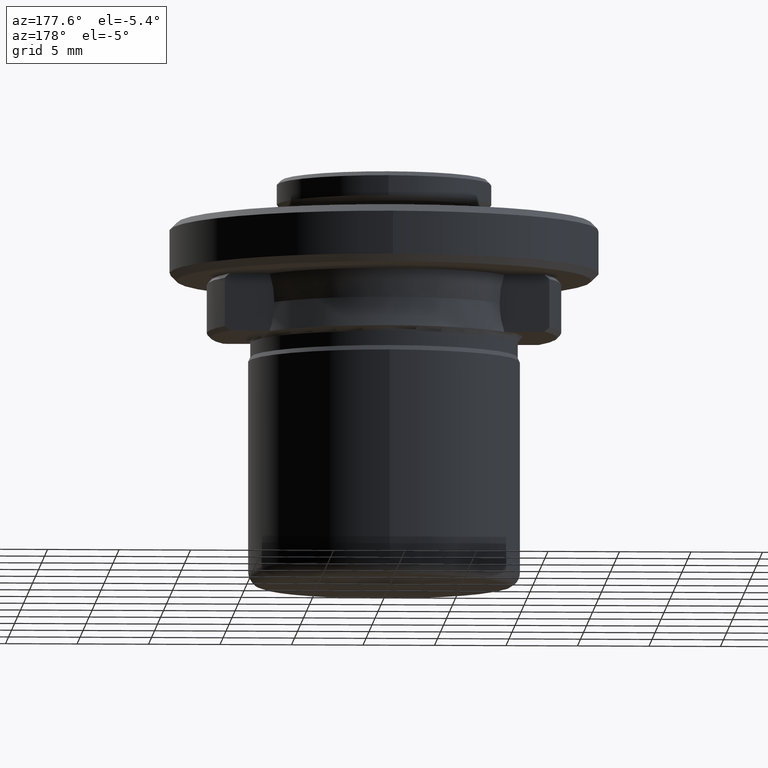
[diagram: clean part render]
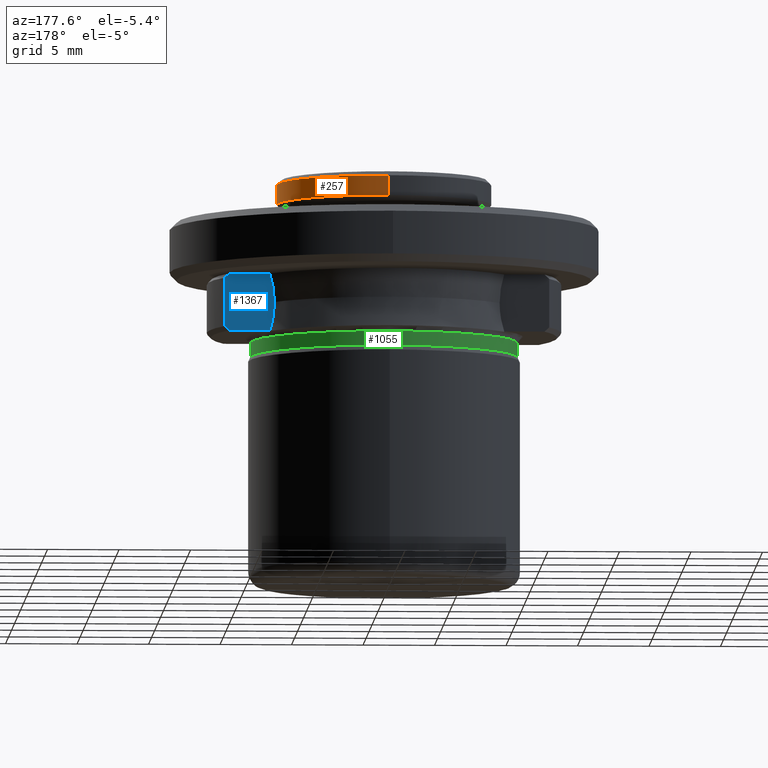
[diagram: same view with three faces highlighted in distinct colors, each labeled with its STEP entity id]
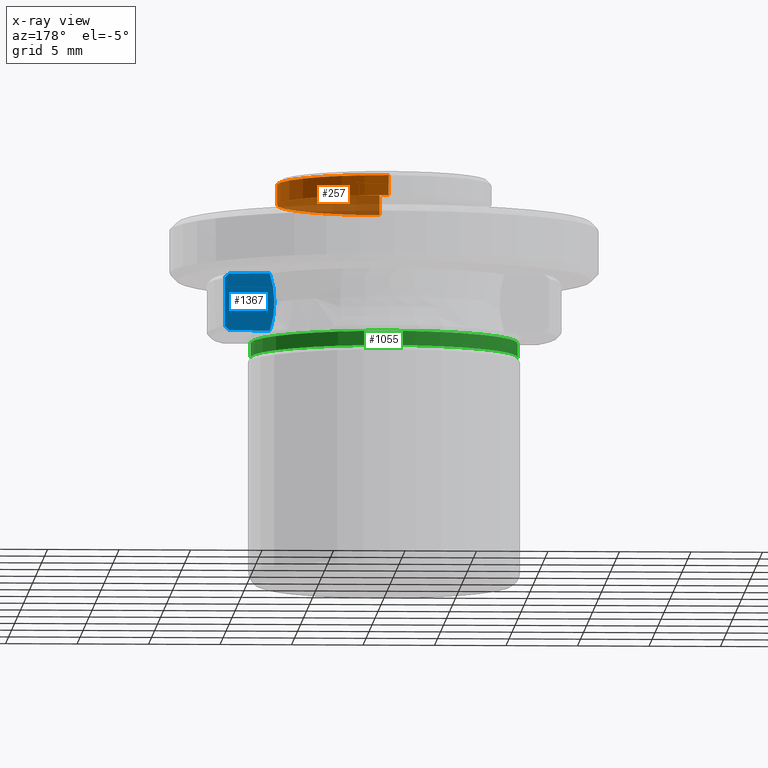
[diagram: x-ray of the same camera — body ghosted, the three highlighted faces saturated]
A machine part, auxiliary view with three faces highlighted in distinct colors.
The next image is the same camera in x-ray (body ghosted, the three faces saturated) — at least one of them is partly hidden behind the body in this view.
Their STEP definitions:

[orange] entity #257 — the highlighted cylindrical surface (partial cylindrical patch) has radius 7.5 mm, axis along (0, -0, -1).
#5 = DIRECTION ( 'NONE',  ( -1.000000000000000000, 0.0000000000000000000, 0.0000000000000000000 ) ) ;
#44 = CARTESIAN_POINT ( 'NONE',  ( 0.0000000000000000000, 7.500000000000000000, 14.05000000000000800 ) ) ;
#76 = DIRECTION ( 'NONE',  ( 0.0000000000000000000, 1.000000000000000000, -2.312964634635743000E-016 ) ) ;
#117 = CARTESIAN_POINT ( 'NONE',  ( 9.184850993605147900E-016, -7.500000000000000000, 14.05000000000000800 ) ) ;
#144 = DIRECTION ( 'NONE',  ( 0.0000000000000000000, 0.0000000000000000000, 1.000000000000000000 ) ) ;
#147 = VERTEX_POINT ( 'NONE', #44 ) ;
#199 = EDGE_LOOP ( 'NONE', ( #1612, #1789, #1942, #669, #343, #1507 ) ) ;
#208 = EDGE_CURVE ( 'NONE', #1764, #147, #620, .T. ) ;
#231 = VECTOR ( 'NONE', #772, 1000.000000000000000 ) ;
#257 = ADVANCED_FACE ( 'NONE', ( #1793 ), #506, .T. ) ;
#287 = CARTESIAN_POINT ( 'NONE',  ( 9.184850993605147900E-016, -7.500000000000000000, 15.45000000000000100 ) ) ;
#343 = ORIENTED_EDGE ( 'NONE', *, *, #208, .F. ) ;
#401 = AXIS2_PLACEMENT_3D ( 'NONE', #1945, #972, #5 ) ;
#485 = DIRECTION ( 'NONE',  ( 0.0000000000000000000, 0.0000000000000000000, 1.000000000000000000 ) ) ;
#506 = CYLINDRICAL_SURFACE ( 'NONE', #1294, 7.500000000000000000 ) ;
#518 = CIRCLE ( 'NONE', #401, 7.500000000000000000 ) ;
#568 = CARTESIAN_POINT ( 'NONE',  ( 0.0000000000000000000, 0.0000000000000000000, 15.45000000000000100 ) ) ;
#619 = CARTESIAN_POINT ( 'NONE',  ( 9.184850993605147900E-016, -7.500000000000000000, 15.45000000000000300 ) ) ;
#620 = LINE ( 'NONE', #1499, #1843 ) ;
#634 = CIRCLE ( 'NONE', #1586, 7.500000000000000000 ) ;
#669 = ORIENTED_EDGE ( 'NONE', *, *, #1486, .T. ) ;
#721 = DIRECTION ( 'NONE',  ( -0.0000000000000000000, -0.0000000000000000000, 1.000000000000000000 ) ) ;
#772 = DIRECTION ( 'NONE',  ( 0.0000000000000000000, -1.156482317317871700E-016, -1.000000000000000000 ) ) ;
#874 = EDGE_CURVE ( 'NONE', #1920, #885, #1593, .T. ) ;
#885 = VERTEX_POINT ( 'NONE', #117 ) ;
#972 = DIRECTION ( 'NONE',  ( -0.0000000000000000000, -0.0000000000000000000, 1.000000000000000000 ) ) ;
#983 = VERTEX_POINT ( 'NONE', #1645 ) ;
#1023 = AXIS2_PLACEMENT_3D ( 'NONE', #1686, #721, #1846 ) ;
#1120 = CARTESIAN_POINT ( 'NONE',  ( 0.0000000000000000000, 0.0000000000000000000, 14.05000000000000800 ) ) ;
#1165 = VERTEX_POINT ( 'NONE', #2001 ) ;
#1177 = EDGE_CURVE ( 'NONE', #1920, #983, #1598, .T. ) ;
#1178 = CIRCLE ( 'NONE', #1536, 7.500000000000000000 ) ;
#1285 = DIRECTION ( 'NONE',  ( 1.000000000000000000, 0.0000000000000000000, -6.938893903907228400E-016 ) ) ;
#1294 = AXIS2_PLACEMENT_3D ( 'NONE', #568, #1856, #76 ) ;
#1325 = EDGE_CURVE ( 'NONE', #885, #1165, #634, .T. ) ;
#1454 = CARTESIAN_POINT ( 'NONE',  ( 0.0000000000000000000, 0.0000000000000000000, 14.05000000000000800 ) ) ;
#1486 = EDGE_CURVE ( 'NONE', #1165, #147, #1178, .T. ) ;
#1499 = CARTESIAN_POINT ( 'NONE',  ( 0.0000000000000000000, 7.500000000000000000, 15.45000000000000100 ) ) ;
#1507 = ORIENTED_EDGE ( 'NONE', *, *, #1600, .F. ) ;
#1509 = DIRECTION ( 'NONE',  ( 0.0000000000000000000, -1.156482317317871700E-016, -1.000000000000000000 ) ) ;
#1536 = AXIS2_PLACEMENT_3D ( 'NONE', #1454, #485, #1628 ) ;
#1586 = AXIS2_PLACEMENT_3D ( 'NONE', #1120, #144, #1285 ) ;
#1593 = LINE ( 'NONE', #619, #231 ) ;
#1598 = CIRCLE ( 'NONE', #1023, 7.500000000000000000 ) ;
#1600 = EDGE_CURVE ( 'NONE', #983, #1764, #518, .T. ) ;
#1612 = ORIENTED_EDGE ( 'NONE', *, *, #1177, .F. ) ;
#1628 = DIRECTION ( 'NONE',  ( 1.000000000000000000, 0.0000000000000000000, -6.938893903907228400E-016 ) ) ;
#1645 = CARTESIAN_POINT ( 'NONE',  ( 7.500000000000000000, 9.184850993605147900E-016, 15.45000000000000100 ) ) ;
#1686 = CARTESIAN_POINT ( 'NONE',  ( 0.0000000000000000000, 0.0000000000000000000, 15.45000000000000100 ) ) ;
#1764 = VERTEX_POINT ( 'NONE', #1824 ) ;
#1789 = ORIENTED_EDGE ( 'NONE', *, *, #874, .T. ) ;
#1793 = FACE_OUTER_BOUND ( 'NONE', #199, .T. ) ;
#1824 = CARTESIAN_POINT ( 'NONE',  ( 0.0000000000000000000, 7.500000000000000000, 15.45000000000000100 ) ) ;
#1843 = VECTOR ( 'NONE', #1509, 1000.000000000000000 ) ;
#1846 = DIRECTION ( 'NONE',  ( -1.000000000000000000, 0.0000000000000000000, 0.0000000000000000000 ) ) ;
#1856 = DIRECTION ( 'NONE',  ( 0.0000000000000000000, -1.156482317317871700E-016, -1.000000000000000000 ) ) ;
#1920 = VERTEX_POINT ( 'NONE', #287 ) ;
#1942 = ORIENTED_EDGE ( 'NONE', *, *, #1325, .T. ) ;
#1945 = CARTESIAN_POINT ( 'NONE',  ( 0.0000000000000000000, 0.0000000000000000000, 15.45000000000000100 ) ) ;
#2001 = CARTESIAN_POINT ( 'NONE',  ( 7.500000000000005300, 0.0000000000000000000, 14.05000000000000800 ) ) ;

[blue] entity #1367 — the highlighted planar face has unit normal (0, -1, 0).
#8 = CARTESIAN_POINT ( 'NONE',  ( 8.205382974800770100, 5.000000000000000900, 4.724235040159770800 ) ) ;
#51 = VECTOR ( 'NONE', #533, 1000.000000000000000 ) ;
#98 = CARTESIAN_POINT ( 'NONE',  ( 10.23516726099999900, 5.000000000000000000, 4.750000000000000000 ) ) ;
#106 = EDGE_CURVE ( 'NONE', #1976, #1467, #1427, .T. ) ;
#122 = VERTEX_POINT ( 'NONE', #8 ) ;
#125 = CARTESIAN_POINT ( 'NONE',  ( 7.877112415290536500, 5.000000000000000000, 6.061559035861058900 ) ) ;
#185 = CARTESIAN_POINT ( 'NONE',  ( 8.196975814546172900, 5.000000003314001500, 8.750000000509832200 ) ) ;
#219 = EDGE_CURVE ( 'NONE', #296, #1438, #1772, .T. ) ;
#242 = B_SPLINE_CURVE_WITH_KNOTS ( 'NONE', 3,
 ( #1844, #720, #725, #1851 ),
 .UNSPECIFIED., .F., .F.,
 ( 4, 4 ),
 ( 0.0000000000000000000, 0.0001669516242611762100 ),
 .UNSPECIFIED. ) ;
#296 = VERTEX_POINT ( 'NONE', #1557 ) ;
#400 = CARTESIAN_POINT ( 'NONE',  ( 7.877112416672512800, 4.999999997048595500, 6.749999999319589600 ) ) ;
#404 = ORIENTED_EDGE ( 'NONE', *, *, #2019, .T. ) ;
#426 = CARTESIAN_POINT ( 'NONE',  ( 11.01862060256122100, 5.000000003314000600, 8.749999999325346800 ) ) ;
#459 = CARTESIAN_POINT ( 'NONE',  ( 7.990553860150956900, 5.000000000000000000, 5.378188955162049600 ) ) ;
#462 = CARTESIAN_POINT ( 'NONE',  ( 8.370334521264656000, 4.999999999999999100, 4.749999999889213100 ) ) ;
#483 = VERTEX_POINT ( 'NONE', #462 ) ;
#487 = VECTOR ( 'NONE', #1243, 1000.000000000000000 ) ;
#488 = LINE ( 'NONE', #1980, #51 ) ;
#516 = CARTESIAN_POINT ( 'NONE',  ( 7.877112415001549000, 5.000000000000003600, 7.429352586418210600 ) ) ;
#533 = DIRECTION ( 'NONE',  ( 1.000000000000000000, 0.0000000000000000000, 0.0000000000000000000 ) ) ;
#556 = AXIS2_PLACEMENT_3D ( 'NONE', #953, #1767, #808 ) ;
#629 = EDGE_CURVE ( 'NONE', #880, #807, #1505, .T. ) ;
#642 = PLANE ( 'NONE',  #556 ) ;
#650 = ORIENTED_EDGE ( 'NONE', *, *, #696, .T. ) ;
#667 = CARTESIAN_POINT ( 'NONE',  ( 11.12828599698353000, 5.000000000124183300, 4.849864575581147400 ) ) ;
#696 = EDGE_CURVE ( 'NONE', #1976, #483, #1345, .T. ) ;
#720 = CARTESIAN_POINT ( 'NONE',  ( 8.259008784446502100, 5.000000000000000000, 4.741517755132616000 ) ) ;
#725 = CARTESIAN_POINT ( 'NONE',  ( 8.314009200938841100, 5.000000000000000000, 4.749999999677823900 ) ) ;
#782 = EDGE_CURVE ( 'NONE', #122, #483, #242, .T. ) ;
#807 = VERTEX_POINT ( 'NONE', #1542 ) ;
#808 = DIRECTION ( 'NONE',  ( 0.0000000000000000000, 0.0000000000000000000, -1.000000000000000000 ) ) ;
#826 = CARTESIAN_POINT ( 'NONE',  ( 11.34724636200171400, 5.000000000000000000, 5.049999999998430400 ) ) ;
#880 = VERTEX_POINT ( 'NONE', #1260 ) ;
#947 = FACE_OUTER_BOUND ( 'NONE', #1128, .T. ) ;
#953 = CARTESIAN_POINT ( 'NONE',  ( 7.846961496000001400, 5.000000000000000000, 8.750000000000000000 ) ) ;
#956 = DIRECTION ( 'NONE',  ( -0.0000000000000000000, -0.0000000000000000000, 1.000000000000000000 ) ) ;
#1114 = ORIENTED_EDGE ( 'NONE', *, *, #106, .F. ) ;
#1126 = B_SPLINE_CURVE_WITH_KNOTS ( 'NONE', 3,
 ( #400, #125, #459, #1604 ),
 .UNSPECIFIED., .F., .F.,
 ( 4, 4 ),
 ( 8.673617379884035500E-019, 0.002058707678565891700 ),
 .UNSPECIFIED. ) ;
#1128 = EDGE_LOOP ( 'NONE', ( #1904, #1114, #650, #1826, #1891, #1495, #404, #1813 ) ) ;
#1131 = CARTESIAN_POINT ( 'NONE',  ( 11.34724636200171400, 5.000000000000000000, 5.049999999998430400 ) ) ;
#1155 = CARTESIAN_POINT ( 'NONE',  ( 7.987554438062074000, 5.000000000000002700, 8.103832764914706400 ) ) ;
#1238 = EDGE_CURVE ( 'NONE', #807, #122, #1126, .T. ) ;
#1243 = DIRECTION ( 'NONE',  ( -1.000000000000000000, -0.0000000000000000000, -0.0000000000000000000 ) ) ;
#1260 = CARTESIAN_POINT ( 'NONE',  ( 8.196975814546172900, 5.000000003314001500, 8.750000000509832200 ) ) ;
#1287 = CARTESIAN_POINT ( 'NONE',  ( 11.34724636200000000, 5.000000000000000000, 6.725040224999999900 ) ) ;
#1344 = CARTESIAN_POINT ( 'NONE',  ( 11.34724636200171400, 5.000000000000000000, 8.450000000001548300 ) ) ;
#1345 = LINE ( 'NONE', #98, #487 ) ;
#1367 = ADVANCED_FACE ( 'NONE', ( #947 ), #642, .F. ) ;
#1427 = B_SPLINE_CURVE_WITH_KNOTS ( 'NONE', 3,
 ( #1778, #667, #1948, #826 ),
 .UNSPECIFIED., .F., .F.,
 ( 4, 4 ),
 ( 2.419956629610929600E-013, 0.0004449661666843174800 ),
 .UNSPECIFIED. ) ;
#1438 = VERTEX_POINT ( 'NONE', #1931 ) ;
#1446 = EDGE_CURVE ( 'NONE', #1467, #1438, #1665, .T. ) ;
#1467 = VERTEX_POINT ( 'NONE', #1131 ) ;
#1495 = ORIENTED_EDGE ( 'NONE', *, *, #629, .F. ) ;
#1505 = B_SPLINE_CURVE_WITH_KNOTS ( 'NONE', 3,
 ( #185, #1155, #516, #1650 ),
 .UNSPECIFIED., .F., .F.,
 ( 4, 4 ),
 ( 2.261502033258373100E-013, 0.002031991267083054800 ),
 .UNSPECIFIED. ) ;
#1542 = CARTESIAN_POINT ( 'NONE',  ( 7.877112416672512800, 4.999999997048595500, 6.749999999319589600 ) ) ;
#1557 = CARTESIAN_POINT ( 'NONE',  ( 11.01862060256122100, 5.000000003314000600, 8.749999999325346800 ) ) ;
#1604 = CARTESIAN_POINT ( 'NONE',  ( 8.205382974800770100, 5.000000000000000900, 4.724235040159770800 ) ) ;
#1650 = CARTESIAN_POINT ( 'NONE',  ( 7.877112416672512800, 4.999999997048595500, 6.749999999319589600 ) ) ;
#1661 = CARTESIAN_POINT ( 'NONE',  ( 11.01862060314533100, 4.999999999999999100, 4.749999999837141800 ) ) ;
#1665 = LINE ( 'NONE', #1287, #1859 ) ;
#1730 = CARTESIAN_POINT ( 'NONE',  ( 11.12828599823895500, 5.000000000000000000, 8.650135423148148200 ) ) ;
#1742 = CARTESIAN_POINT ( 'NONE',  ( 11.23782482281900400, 5.000000000000000000, 8.550131706648159000 ) ) ;
#1767 = DIRECTION ( 'NONE',  ( 0.0000000000000000000, -1.000000000000000000, 0.0000000000000000000 ) ) ;
#1772 = B_SPLINE_CURVE_WITH_KNOTS ( 'NONE', 3,
 ( #426, #1730, #1742, #1344 ),
 .UNSPECIFIED., .F., .F.,
 ( 4, 4 ),
 ( 0.0000000000000000000, 0.0004449661644237766600 ),
 .UNSPECIFIED. ) ;
#1778 = CARTESIAN_POINT ( 'NONE',  ( 11.01862060314533100, 4.999999999999999100, 4.749999999837141800 ) ) ;
#1813 = ORIENTED_EDGE ( 'NONE', *, *, #219, .T. ) ;
#1826 = ORIENTED_EDGE ( 'NONE', *, *, #782, .F. ) ;
#1844 = CARTESIAN_POINT ( 'NONE',  ( 8.205382974800770100, 5.000000000000000900, 4.724235040159770800 ) ) ;
#1851 = CARTESIAN_POINT ( 'NONE',  ( 8.370334521264656000, 4.999999999999999100, 4.749999999889213100 ) ) ;
#1859 = VECTOR ( 'NONE', #956, 1000.000000000000000 ) ;
#1891 = ORIENTED_EDGE ( 'NONE', *, *, #1238, .F. ) ;
#1904 = ORIENTED_EDGE ( 'NONE', *, *, #1446, .F. ) ;
#1931 = CARTESIAN_POINT ( 'NONE',  ( 11.34724636200171400, 5.000000000000000000, 8.450000000001548300 ) ) ;
#1948 = CARTESIAN_POINT ( 'NONE',  ( 11.23782482202214300, 5.000000000000000000, 4.949868292623029300 ) ) ;
#1976 = VERTEX_POINT ( 'NONE', #1661 ) ;
#1980 = CARTESIAN_POINT ( 'NONE',  ( 0.0000000000000000000, 5.000000006628000400, 8.750000000000000000 ) ) ;
#2019 = EDGE_CURVE ( 'NONE', #880, #296, #488, .T. ) ;

[green] entity #1055 — the highlighted cylindrical surface (partial cylindrical patch) has radius 9.35 mm, axis along (0, -0, 1).
#12 = CARTESIAN_POINT ( 'NONE',  ( -9.350000000000003200, 0.0000000000000000000, 3.351676037999996800 ) ) ;
#142 = EDGE_CURVE ( 'NONE', #395, #1360, #1521, .T. ) ;
#157 = DIRECTION ( 'NONE',  ( -0.0000000000000000000, -0.0000000000000000000, -1.000000000000000000 ) ) ;
#167 = DIRECTION ( 'NONE',  ( 0.0000000000000000000, -0.0000000000000000000, 1.000000000000000000 ) ) ;
#191 = ORIENTED_EDGE ( 'NONE', *, *, #344, .F. ) ;
#195 = CARTESIAN_POINT ( 'NONE',  ( -9.350000000108330800, 1.145044757216041900E-015, 4.349999999879580400 ) ) ;
#235 = AXIS2_PLACEMENT_3D ( 'NONE', #743, #1867, #908 ) ;
#264 = EDGE_LOOP ( 'NONE', ( #191, #785, #1595, #1352 ) ) ;
#306 = CARTESIAN_POINT ( 'NONE',  ( 9.350000000108330800, 0.0000000000000000000, 4.349999999879580400 ) ) ;
#317 = VECTOR ( 'NONE', #167, 1000.000000000000000 ) ;
#344 = EDGE_CURVE ( 'NONE', #1554, #395, #396, .T. ) ;
#352 = DIRECTION ( 'NONE',  ( 1.000000000000000000, 0.0000000000000000000, 0.0000000000000000000 ) ) ;
#395 = VERTEX_POINT ( 'NONE', #1627 ) ;
#396 = CIRCLE ( 'NONE', #1734, 9.350000000000003200 ) ;
#472 = VECTOR ( 'NONE', #1935, 1000.000000000000000 ) ;
#497 = CARTESIAN_POINT ( 'NONE',  ( 9.350000000000003200, 0.0000000000000000000, 3.351676037999999500 ) ) ;
#524 = DIRECTION ( 'NONE',  ( 0.0000000000000000000, -0.0000000000000000000, 1.000000000000000000 ) ) ;
#656 = EDGE_CURVE ( 'NONE', #2008, #1360, #1018, .T. ) ;
#743 = CARTESIAN_POINT ( 'NONE',  ( 0.0000000000000000000, 0.0000000000000000000, 4.349999999879580400 ) ) ;
#785 = ORIENTED_EDGE ( 'NONE', *, *, #1378, .T. ) ;
#907 = LINE ( 'NONE', #959, #472 ) ;
#908 = DIRECTION ( 'NONE',  ( -1.000000000000000000, 0.0000000000000000000, 0.0000000000000000000 ) ) ;
#959 = CARTESIAN_POINT ( 'NONE',  ( -9.350000000000003200, 1.145044757202775600E-015, 3.351676037999999500 ) ) ;
#1018 = CIRCLE ( 'NONE', #235, 9.350000000108330800 ) ;
#1055 = ADVANCED_FACE ( 'NONE', ( #1779 ), #1303, .T. ) ;
#1130 = CARTESIAN_POINT ( 'NONE',  ( 0.0000000000000000000, 0.0000000000000000000, 3.351676037999996800 ) ) ;
#1291 = DIRECTION ( 'NONE',  ( 1.000000000000000000, 0.0000000000000000000, 2.782978838465465100E-016 ) ) ;
#1303 = CYLINDRICAL_SURFACE ( 'NONE', #2051, 9.350000000000003200 ) ;
#1352 = ORIENTED_EDGE ( 'NONE', *, *, #142, .F. ) ;
#1360 = VERTEX_POINT ( 'NONE', #306 ) ;
#1378 = EDGE_CURVE ( 'NONE', #1554, #2008, #907, .T. ) ;
#1521 = LINE ( 'NONE', #497, #317 ) ;
#1554 = VERTEX_POINT ( 'NONE', #12 ) ;
#1595 = ORIENTED_EDGE ( 'NONE', *, *, #656, .T. ) ;
#1627 = CARTESIAN_POINT ( 'NONE',  ( 9.350000000000003200, 1.154229608196380700E-015, 3.351676037999996800 ) ) ;
#1734 = AXIS2_PLACEMENT_3D ( 'NONE', #1130, #157, #1291 ) ;
#1779 = FACE_OUTER_BOUND ( 'NONE', #264, .T. ) ;
#1867 = DIRECTION ( 'NONE',  ( 0.0000000000000000000, -0.0000000000000000000, -1.000000000000000000 ) ) ;
#1935 = DIRECTION ( 'NONE',  ( 0.0000000000000000000, -0.0000000000000000000, 1.000000000000000000 ) ) ;
#1973 = CARTESIAN_POINT ( 'NONE',  ( 0.0000000000000000000, 0.0000000000000000000, 3.351676037999999500 ) ) ;
#2008 = VERTEX_POINT ( 'NONE', #195 ) ;
#2051 = AXIS2_PLACEMENT_3D ( 'NONE', #1973, #524, #352 ) ;